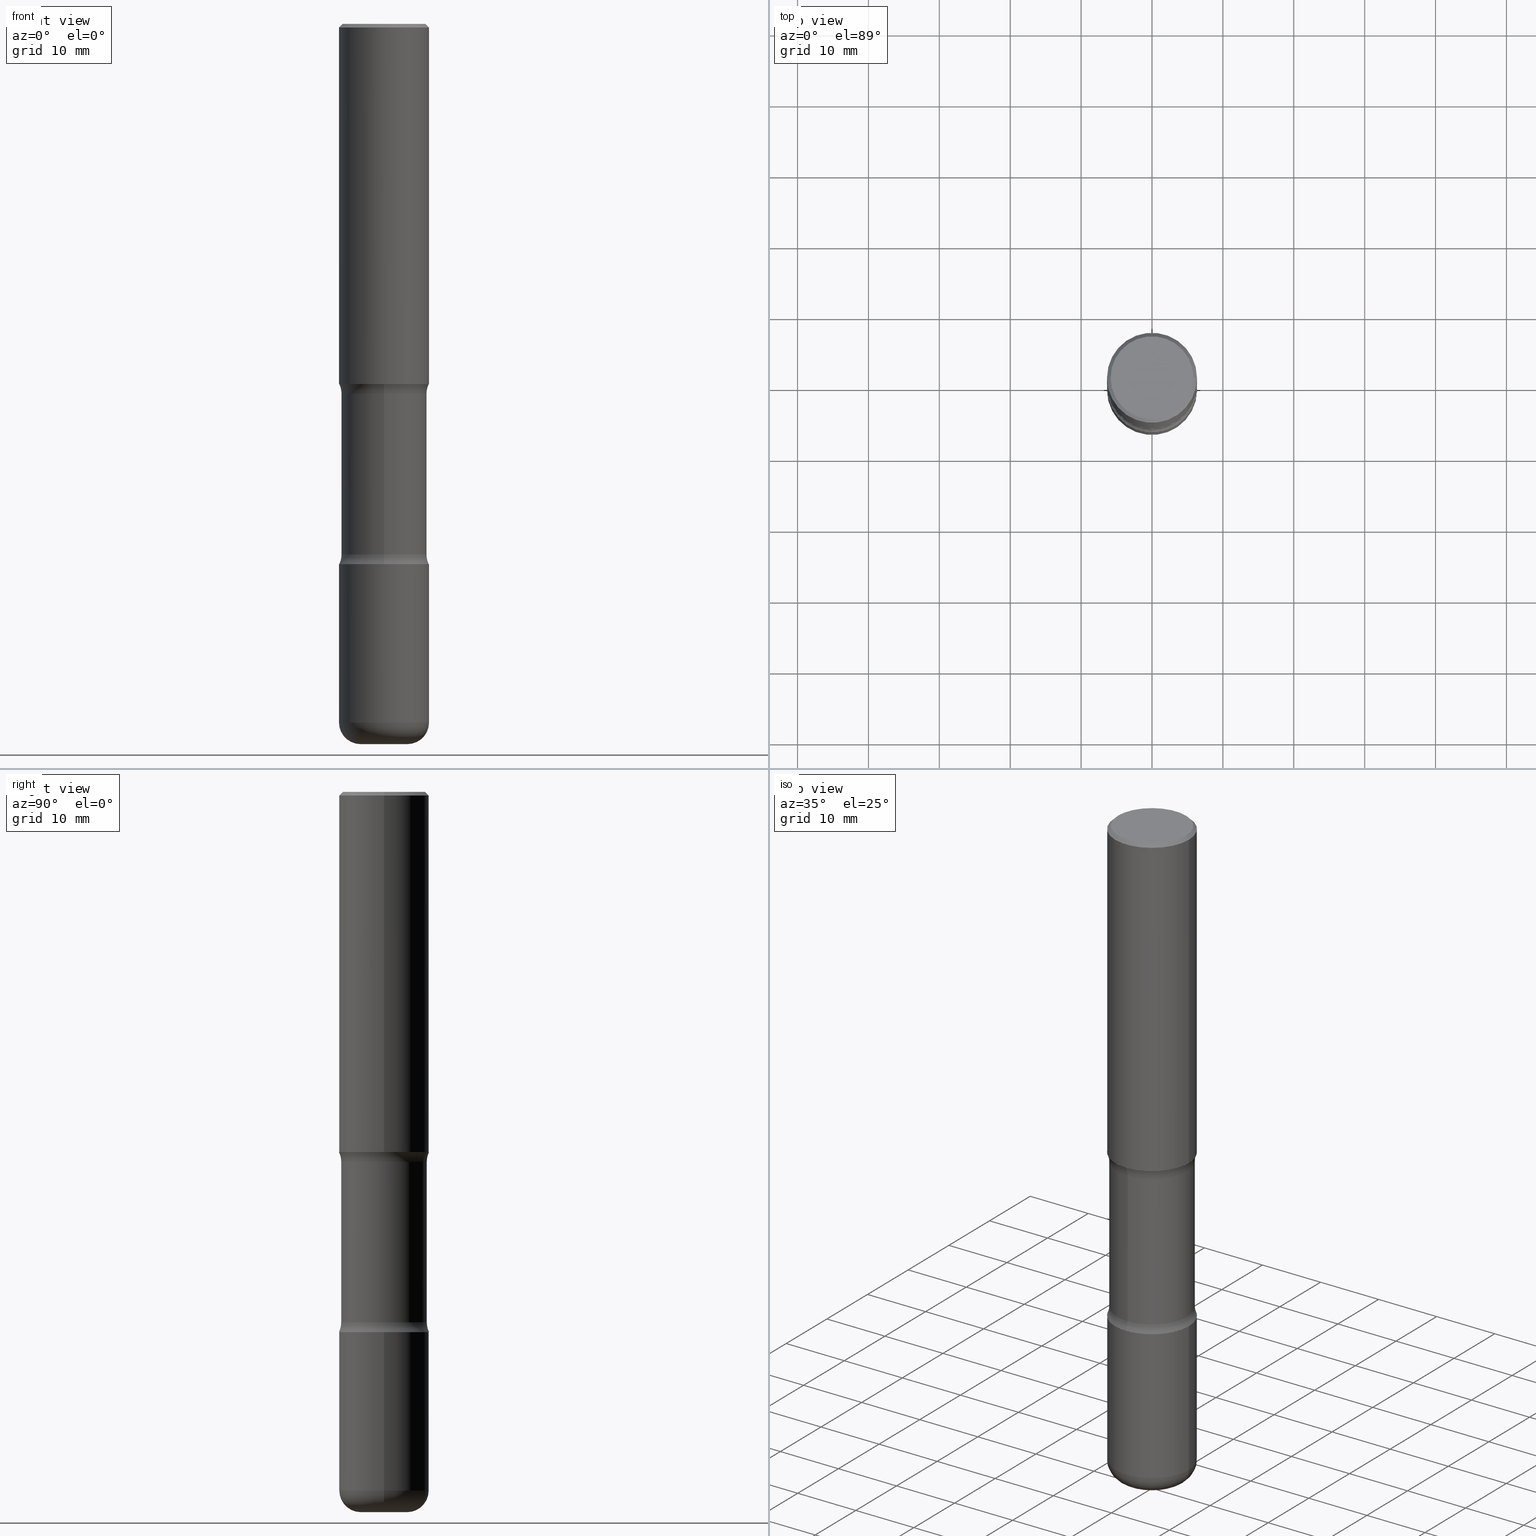
[diagram: canonical four-view strip — front | top / right | iso, engineering-drawing reading convention]
A machine part, canonical four-view strip (front | top / right | iso — engineering-drawing reading convention). The complete STEP part file that produces these views, byte-faithful:
ISO-10303-21;
HEADER;
FILE_DESCRIPTION (( 'STEP AP203' ),
    '1' );
FILE_NAME ('37892.STEP',
    '2024-03-02T01:09:26',
    ( '' ),
    ( '' ),
    'SwSTEP 2.0',
    'SolidWorks 2023',
    '' );
FILE_SCHEMA (( 'CONFIG_CONTROL_DESIGN' ));
ENDSEC;

DATA;
#1 = CLOSED_SHELL ( 'NONE', ( #502, #413, #62, #197, #475, #171, #137, #147 ) ) ;
#2 = DIRECTION ( 'NONE',  ( 1.000000000000000000, -6.982962677686267499E-15, 4.876176775795936353E-29 ) ) ;
#3 = DIRECTION ( 'NONE',  ( 0.000000000000000000, 0.000000000000000000, 1.000000000000000000 ) ) ;
#4 = EDGE_CURVE ( 'NONE', #52, #246, #182, .T. ) ;
#5 = DIRECTION ( 'NONE',  ( 1.000000000000000000, -6.982962677686267499E-15, 0.000000000000000000 ) ) ;
#6 = FACE_OUTER_BOUND ( 'NONE', #192, .T. ) ;
#7 = VERTEX_POINT ( 'NONE', #156 ) ;
#8 = AXIS2_PLACEMENT_3D ( 'NONE', #359, #243, #221 ) ;
#9 = DIRECTION ( 'NONE',  ( -2.438088387897960049E-29, 3.491481338843145188E-15, 1.000000000000000000 ) ) ;
#10 = PLANE ( 'NONE',  #163 ) ;
#11 = CARTESIAN_POINT ( 'NONE',  ( -0.1300000000000003375, -1.262324203822327621E-14, -3.880000000000000782 ) ) ;
#12 = DIRECTION ( 'NONE',  ( 2.530378452311521502E-29, -3.369885892833230986E-15, -1.000000000000000000 ) ) ;
#13 = CARTESIAN_POINT ( 'NONE',  ( 4.943898765775623630E-29, -7.288170524422749615E-15, -2.054486236794258680 ) ) ;
#14 = PERSON_AND_ORGANIZATION ( #513, #545 ) ;
#15 = EDGE_CURVE ( 'NONE', #246, #72, #141, .T. ) ;
#16 = DIRECTION ( 'NONE',  ( 1.000000000000000000, -6.982962677686265922E-15, 4.876176775795935793E-29 ) ) ;
#17 = AXIS2_PLACEMENT_3D ( 'NONE', #387, #346, #548 ) ;
#18 = CARTESIAN_POINT ( 'NONE',  ( 9.488418967998331206E-29, -1.354694759471140727E-14, -3.880000000000000782 ) ) ;
#19 = AXIS2_PLACEMENT_3D ( 'NONE', #122, #126, #296 ) ;
#20 = DIRECTION ( 'NONE',  ( -2.445468806185136597E-29, 3.491481338843145583E-15, 1.000000000000000000 ) ) ;
#21 = ORIENTED_EDGE ( 'NONE', *, *, #26, .T. ) ;
#22 = DIRECTION ( 'NONE',  ( 2.530378452311521502E-29, -3.369885892833230592E-15, -1.000000000000000000 ) ) ;
#23 = DIRECTION ( 'NONE',  ( 6.982962677686265922E-15, 1.000000000000000000, -3.369885892833230986E-15 ) ) ;
#24 = APPLICATION_PROTOCOL_DEFINITION ( 'international standard', 'config_control_design', 1994, #209 ) ;
#25 = ORIENTED_EDGE ( 'NONE', *, *, #322, .F. ) ;
#26 = EDGE_CURVE ( 'NONE', #300, #426, #419, .T. ) ;
#27 = CARTESIAN_POINT ( 'NONE',  ( -0.2500000000000003331, 1.776356839400252831E-15, -1.229733772563727987E-29 ) ) ;
#28 = ORIENTED_EDGE ( 'NONE', *, *, #201, .F. ) ;
#29 = CARTESIAN_POINT ( 'NONE',  ( 0.2500000000000002776, -1.222018468595100619E-14, -3.000000000000000444 ) ) ;
#30 = AXIS2_PLACEMENT_3D ( 'NONE', #172, #264, #181 ) ;
#31 = CIRCLE ( 'NONE', #168, 0.1300000000000003375 ) ;
#32 = VERTEX_POINT ( 'NONE', #112 ) ;
#33 =( NAMED_UNIT ( * ) SI_UNIT ( $, .STERADIAN. ) SOLID_ANGLE_UNIT ( ) );
#34 = ORIENTED_EDGE ( 'NONE', *, *, #218, .T. ) ;
#35 = FACE_OUTER_BOUND ( 'NONE', #213, .T. ) ;
#36 = CARTESIAN_POINT ( 'NONE',  ( 1.745740669421641422E-15, 0.2499999999999897582, -3.000000000000000888 ) ) ;
#37 = DIRECTION ( 'NONE',  ( 1.000000000000000000, -6.982962677686269077E-15, 0.000000000000000000 ) ) ;
#38 = AXIS2_PLACEMENT_3D ( 'NONE', #167, #78, #357 ) ;
#39 = AXIS2_PLACEMENT_3D ( 'NONE', #363, #532, #442 ) ;
#40 = ORIENTED_EDGE ( 'NONE', *, *, #170, .T. ) ;
#41 = LINE ( 'NONE', #267, #84 ) ;
#42 = DIRECTION ( 'NONE',  ( 1.000000000000000000, -6.982962677686267499E-15, 0.000000000000000000 ) ) ;
#43 = SECURITY_CLASSIFICATION_LEVEL ( 'unclassified' ) ;
#44 = FACE_OUTER_BOUND ( 'NONE', #252, .T. ) ;
#45 = CALENDAR_DATE ( 2024, 1, 3 ) ;
#46 = CARTESIAN_POINT ( 'NONE',  ( 4.890937612370273194E-29, -6.982962677686291165E-15, -2.000000000000000000 ) ) ;
#47 = AXIS2_PLACEMENT_3D ( 'NONE', #270, #338, #500 ) ;
#48 = AXIS2_PLACEMENT_3D ( 'NONE', #260, #262, #272 ) ;
#49 = CARTESIAN_POINT ( 'NONE',  ( 0.000000000000000000, 0.000000000000000000, 0.000000000000000000 ) ) ;
#50 = EDGE_CURVE ( 'NONE', #7, #288, #194, .T. ) ;
#51 = ORIENTED_EDGE ( 'NONE', *, *, #310, .T. ) ;
#52 = VERTEX_POINT ( 'NONE', #443 ) ;
#53 = CARTESIAN_POINT ( 'NONE',  ( 7.336406418555409790E-29, -1.047444401652943635E-14, -3.000000000000000444 ) ) ;
#54 = DIRECTION ( 'NONE',  ( 1.000000000000000000, -6.860497997771530774E-15, 4.842287994361612002E-29 ) ) ;
#55 = EDGE_CURVE ( 'NONE', #222, #281, #554, .T. ) ;
#56 = ORIENTED_EDGE ( 'NONE', *, *, #218, .F. ) ;
#57 = CIRCLE ( 'NONE', #109, 0.2499999999999999167 ) ;
#58 = CIRCLE ( 'NONE', #345, 0.2375000000000001277 ) ;
#59 = DATE_TIME_ROLE ( 'creation_date' ) ;
#60 = FACE_OUTER_BOUND ( 'NONE', #158, .T. ) ;
#61 = FACE_OUTER_BOUND ( 'NONE', #157, .T. ) ;
#62 = ADVANCED_FACE ( 'NONE', ( #61 ), #427, .F. ) ;
#63 = VERTEX_POINT ( 'NONE', #64 ) ;
#64 = CARTESIAN_POINT ( 'NONE',  ( -0.1300000000000003375, -1.240640527709780404E-14, -4.000000000000000888 ) ) ;
#65 = ORIENTED_EDGE ( 'NONE', *, *, #322, .T. ) ;
#66 = DIMENSIONAL_EXPONENTS ( 1.000000000000000000, 0.000000000000000000, 0.000000000000000000, 0.000000000000000000, 0.000000000000000000, 0.000000000000000000, 0.000000000000000000 ) ;
#67 = DIRECTION ( 'NONE',  ( 2.438088387897960049E-29, -3.491481338843145188E-15, -1.000000000000000000 ) ) ;
#68 = CIRCLE ( 'NONE', #544, 0.2500000000000001665 ) ;
#69 = ORIENTED_EDGE ( 'NONE', *, *, #50, .T. ) ;
#70 = EDGE_CURVE ( 'NONE', #107, #204, #355, .T. ) ;
#71 = CARTESIAN_POINT ( 'NONE',  ( 4.806027966243888288E-29, -7.104558123696206156E-15, -2.000000000000000000 ) ) ;
#72 = VERTEX_POINT ( 'NONE', #29 ) ;
#73 = CC_DESIGN_PERSON_AND_ORGANIZATION_ASSIGNMENT ( #465, #82, ( #185 ) ) ;
#74 = CALENDAR_DATE ( 2024, 1, 3 ) ;
#75 = EDGE_LOOP ( 'NONE', ( #417, #123, #227, #553 ) ) ;
#76 = TOROIDAL_SURFACE ( 'NONE', #17, 0.1300000000000003375, 0.1199999999999999539 ) ;
#77 = CIRCLE ( 'NONE', #366, 0.1199999999999999262 ) ;
#78 = DIRECTION ( 'NONE',  ( 2.530378452311521502E-29, -3.369885892833230986E-15, -1.000000000000000000 ) ) ;
#79 = DIRECTION ( 'NONE',  ( -2.445468806185136597E-29, 3.491481338843145583E-15, 1.000000000000000000 ) ) ;
#80 = EDGE_CURVE ( 'NONE', #295, #490, #41, .T. ) ;
#81 = DIRECTION ( 'NONE',  ( 6.982962677686265133E-15, 1.000000000000000000, -3.278217592397110735E-15 ) ) ;
#82 = PERSON_AND_ORGANIZATION_ROLE ( 'classification_officer' ) ;
#83 = AXIS2_PLACEMENT_3D ( 'NONE', #365, #452, #459 ) ;
#84 = VECTOR ( 'NONE', #481, 39.37007874015748143 ) ;
#85 = VECTOR ( 'NONE', #93, 39.37007874015748143 ) ;
#86 = EDGE_CURVE ( 'NONE', #353, #451, #381, .T. ) ;
#87 = DIRECTION ( 'NONE',  ( -2.445468806185136597E-29, 3.491481338843145583E-15, 1.000000000000000000 ) ) ;
#88 = DATE_AND_TIME ( #166, #154 ) ;
#89 = DIRECTION ( 'NONE',  ( -2.445468806185136877E-29, 3.491481338843145188E-15, 1.000000000000000000 ) ) ;
#90 = CARTESIAN_POINT ( 'NONE',  ( 7.203162026108633562E-29, -1.028420633753849345E-14, -2.945513763205741320 ) ) ;
#91 = PRODUCT_DEFINITION ( 'UNKNOWN', '', #517, #261 ) ;
#92 = DIRECTION ( 'NONE',  ( 6.982962677686265922E-15, 1.000000000000000000, -3.369885892833230986E-15 ) ) ;
#93 = DIRECTION ( 'NONE',  ( 2.530378452311521502E-29, -3.369885892833230592E-15, -1.000000000000000000 ) ) ;
#94 = AXIS2_PLACEMENT_3D ( 'NONE', #304, #509, #37 ) ;
#95 = AXIS2_PLACEMENT_3D ( 'NONE', #303, #560, #210 ) ;
#96 = DIRECTION ( 'NONE',  ( -2.445468806185136877E-29, 3.491481338843145188E-15, 1.000000000000000000 ) ) ;
#97 = AXIS2_PLACEMENT_3D ( 'NONE', #71, #287, #376 ) ;
#98 = LOCAL_TIME ( 20, 9, 26.00000000000000000, #505 ) ;
#99 = ADVANCED_FACE ( 'NONE', ( #522 ), #134, .T. ) ;
#100 = CC_DESIGN_SECURITY_CLASSIFICATION ( #185, ( #517 ) ) ;
#101 = ORIENTED_EDGE ( 'NONE', *, *, #275, .F. ) ;
#102 = CARTESIAN_POINT ( 'NONE',  ( 7.336406418555409790E-29, -1.047444401652943635E-14, -3.000000000000000444 ) ) ;
#103 = DIRECTION ( 'NONE',  ( 2.530378452311521502E-29, -3.369885892833230986E-15, -1.000000000000000000 ) ) ;
#104 = EDGE_LOOP ( 'NONE', ( #498, #436 ) ) ;
#105 = PRODUCT ( '37892', '37892', '', ( #434 ) ) ;
#106 = EDGE_CURVE ( 'NONE', #451, #490, #326, .T. ) ;
#107 = VERTEX_POINT ( 'NONE', #36 ) ;
#108 = DATE_AND_TIME ( #314, #431 ) ;
#109 = AXIS2_PLACEMENT_3D ( 'NONE', #169, #390, #255 ) ;
#110 = CIRCLE ( 'NONE', #318, 0.2500000000000001665 ) ;
#111 = ORIENTED_EDGE ( 'NONE', *, *, #55, .F. ) ;
#112 = CARTESIAN_POINT ( 'NONE',  ( -0.2499999999999999167, 1.675911042644703182E-15, -0.02000000000000006981 ) ) ;
#113 = EDGE_LOOP ( 'NONE', ( #56, #373 ) ) ;
#114 = DIRECTION ( 'NONE',  ( -1.000000000000000000, 6.982962677686265922E-15, -4.876176775795935793E-29 ) ) ;
#115 = FACE_OUTER_BOUND ( 'NONE', #458, .T. ) ;
#116 = DIRECTION ( 'NONE',  ( 2.530378452311521502E-29, -3.369885892833230986E-15, -1.000000000000000000 ) ) ;
#117 = ADVANCED_FACE ( 'NONE', ( #344 ), #506, .T. ) ;
#118 = CARTESIAN_POINT ( 'NONE',  ( -1.715124499442811104E-15, -0.2500000000000107692, -2.999999999999999556 ) ) ;
#119 = AXIS2_PLACEMENT_3D ( 'NONE', #540, #79, #424 ) ;
#120 = APPROVAL_PERSON_ORGANIZATION ( #226, #494, #150 ) ;
#121 = FACE_OUTER_BOUND ( 'NONE', #75, .T. ) ;
#122 = CARTESIAN_POINT ( 'NONE',  ( 7.336406418555409790E-29, -1.047444401652943635E-14, -3.000000000000000444 ) ) ;
#123 = ORIENTED_EDGE ( 'NONE', *, *, #354, .T. ) ;
#124 = AXIS2_PLACEMENT_3D ( 'NONE', #180, #285, #279 ) ;
#125 = PERSON_AND_ORGANIZATION_ROLE ( 'creator' ) ;
#126 = DIRECTION ( 'NONE',  ( 2.530378452311521502E-29, -3.369885892833230986E-15, -1.000000000000000000 ) ) ;
#127 = CARTESIAN_POINT ( 'NONE',  ( 0.000000000000000000, 0.000000000000000000, 0.000000000000000000 ) ) ;
#128 = CARTESIAN_POINT ( 'NONE',  ( 1.745740669421617165E-15, 0.2499999999999933109, -2.000000000000000888 ) ) ;
#129 = DIRECTION ( 'NONE',  ( -0.7071067811865467956, 2.468850131082249172E-15, -0.7071067811865482389 ) ) ;
#130 = CARTESIAN_POINT ( 'NONE',  ( 1.658453635950538436E-15, 0.2374999999999928557, -2.054486236794259568 ) ) ;
#131 = SHAPE_DEFINITION_REPRESENTATION ( #276, #200 ) ;
#132 = DIRECTION ( 'NONE',  ( -6.982962677686265922E-15, -1.000000000000000000, 3.369885892833230592E-15 ) ) ;
#133 = CC_DESIGN_DATE_AND_TIME_ASSIGNMENT ( #193, #342, ( #185 ) ) ;
#134 = CONICAL_SURFACE ( 'NONE', #477, 0.2499999999999999167, 0.7853981633974472798 ) ;
#135 = UNCERTAINTY_MEASURE_WITH_UNIT (LENGTH_MEASURE( 1.000000000000000082E-05 ), #466, 'distance_accuracy_value', 'NONE');
#136 = CARTESIAN_POINT ( 'NONE',  ( 0.000000000000000000, 0.000000000000000000, 0.000000000000000000 ) ) ;
#137 = ADVANCED_FACE ( 'NONE', ( #558 ), #174, .F. ) ;
#138 = CARTESIAN_POINT ( 'NONE',  ( 4.890937612370273194E-29, -6.982962677686291165E-15, -2.000000000000000000 ) ) ;
#139 = PLANE ( 'NONE',  #450 ) ;
#140 = ORIENTED_EDGE ( 'NONE', *, *, #80, .T. ) ;
#141 = CIRCLE ( 'NONE', #317, 0.2500000000000002776 ) ;
#142 = CIRCLE ( 'NONE', #19, 0.2500000000000002776 ) ;
#143 = PLANE ( 'NONE',  #124 ) ;
#144 = DIRECTION ( 'NONE',  ( -2.445468806185136877E-29, 3.491481338843145188E-15, 1.000000000000000000 ) ) ;
#145 = ORIENTED_EDGE ( 'NONE', *, *, #263, .T. ) ;
#146 = APPROVAL_DATE_TIME ( #291, #494 ) ;
#147 = ADVANCED_FACE ( 'NONE', ( #472 ), #433, .T. ) ;
#148 = EDGE_LOOP ( 'NONE', ( #378, #384, #319, #495 ) ) ;
#149 = CARTESIAN_POINT ( 'NONE',  ( 9.781875224740547508E-29, -1.396592535537258391E-14, -4.000000000000000888 ) ) ;
#150 = APPROVAL_ROLE ( '' ) ;
#151 = ORIENTED_EDGE ( 'NONE', *, *, #70, .T. ) ;
#152 = CIRCLE ( 'NONE', #94, 0.1300000000000003375 ) ;
#153 = DIRECTION ( 'NONE',  ( -2.445468806185136597E-29, 3.491481338843145583E-15, 1.000000000000000000 ) ) ;
#154 = LOCAL_TIME ( 20, 9, 26.00000000000000000, #470 ) ;
#155 = APPROVAL_PERSON_ORGANIZATION ( #14, #231, #389 ) ;
#156 = CARTESIAN_POINT ( 'NONE',  ( -1.715124499442836348E-15, -0.2500000000000074385, -1.999999999999999112 ) ) ;
#157 = EDGE_LOOP ( 'NONE', ( #412, #191, #69, #28 ) ) ;
#158 = EDGE_LOOP ( 'NONE', ( #425, #240 ) ) ;
#159 = ADVANCED_FACE ( 'NONE', ( #115 ), #496, .T. ) ;
#160 = DIRECTION ( 'NONE',  ( -2.445468806185136597E-29, 3.491481338843145583E-15, 1.000000000000000000 ) ) ;
#161 = EDGE_CURVE ( 'NONE', #286, #204, #404, .T. ) ;
#162 = AXIS2_PLACEMENT_3D ( 'NONE', #526, #173, #385 ) ;
#163 = AXIS2_PLACEMENT_3D ( 'NONE', #484, #330, #460 ) ;
#164 = EDGE_LOOP ( 'NONE', ( #329, #480, #535, #101 ) ) ;
#165 = ADVANCED_FACE ( 'NONE', ( #321 ), #76, .T. ) ;
#166 = CALENDAR_DATE ( 2024, 1, 3 ) ;
#167 = CARTESIAN_POINT ( 'NONE',  ( 7.198535619023675570E-29, -1.029083161580289368E-14, -2.945513763205741320 ) ) ;
#168 = AXIS2_PLACEMENT_3D ( 'NONE', #149, #153, #454 ) ;
#169 = CARTESIAN_POINT ( 'NONE',  ( 4.890937612370289799E-31, -6.982962677686315028E-17, -0.02000000000000006981 ) ) ;
#170 = EDGE_CURVE ( 'NONE', #426, #52, #247, .T. ) ;
#171 = ADVANCED_FACE ( 'NONE', ( #35 ), #511, .F. ) ;
#172 = CARTESIAN_POINT ( 'NONE',  ( 7.198535619023675570E-29, -1.029083161580289368E-14, -2.945513763205741320 ) ) ;
#173 = DIRECTION ( 'NONE',  ( 2.530378452311521502E-29, -3.369885892833230986E-15, -1.000000000000000000 ) ) ;
#174 = TOROIDAL_SURFACE ( 'NONE', #256, 0.3625000000000000999, 0.1250000000000000278 ) ;
#175 = LOCAL_TIME ( 20, 9, 26.00000000000000000, #332 ) ;
#176 = FACE_OUTER_BOUND ( 'NONE', #380, .T. ) ;
#177 = LINE ( 'NONE', #324, #524 ) ;
#178 = ADVANCED_FACE ( 'NONE', ( #311 ), #519, .T. ) ;
#179 = MANIFOLD_SOLID_BREP ( 'Body-Move/Copy2[4]', #1 ) ;
#180 = CARTESIAN_POINT ( 'NONE',  ( 1.606081415867840476E-15, 0.2299999999999998990, -8.030407079339231961E-16 ) ) ;
#181 = DIRECTION ( 'NONE',  ( 6.982962677686265133E-15, 1.000000000000000000, -2.300503573612010239E-15 ) ) ;
#182 = LINE ( 'NONE', #27, #230 ) ;
#183 = EDGE_LOOP ( 'NONE', ( #312, #348 ) ) ;
#184 = AXIS2_PLACEMENT_3D ( 'NONE', #136, #253, #2 ) ;
#185 = SECURITY_CLASSIFICATION ( '', '', #43 ) ;
#186 = CARTESIAN_POINT ( 'NONE',  ( 0.000000000000000000, 0.000000000000000000, 0.000000000000000000 ) ) ;
#187 = ORIENTED_EDGE ( 'NONE', *, *, #422, .F. ) ;
#188 = CYLINDRICAL_SURFACE ( 'NONE', #411, 0.2375000000000000999 ) ;
#189 = DIRECTION ( 'NONE',  ( -1.000000000000000000, 6.982962677686265922E-15, -4.883557194083112340E-29 ) ) ;
#190 = MANIFOLD_SOLID_BREP ( 'Body-Move/Copy2[2]', #533 ) ;
#191 = ORIENTED_EDGE ( 'NONE', *, *, #527, .T. ) ;
#192 = EDGE_LOOP ( 'NONE', ( #474, #372, #244, #388 ) ) ;
#193 = DATE_AND_TIME ( #485, #356 ) ;
#194 = CIRCLE ( 'NONE', #97, 0.2500000000000003886 ) ;
#195 = VECTOR ( 'NONE', #129, 39.37007874015748143 ) ;
#196 = LENGTH_MEASURE_WITH_UNIT ( LENGTH_MEASURE( 0.02539999999999999897 ), #552 );
#197 = ADVANCED_FACE ( 'NONE', ( #6 ), #343, .F. ) ;
#198 = EDGE_LOOP ( 'NONE', ( #229, #360, #549, #468 ) ) ;
#199 = EDGE_LOOP ( 'NONE', ( #111, #25, #151, #445 ) ) ;
#200 = ADVANCED_BREP_SHAPE_REPRESENTATION ( '37892', ( #383, #190, #179, #525 ), #302 ) ;
#201 = EDGE_CURVE ( 'NONE', #286, #288, #398, .T. ) ;
#202 = AXIS2_PLACEMENT_3D ( 'NONE', #245, #374, #81 ) ;
#203 = AXIS2_PLACEMENT_3D ( 'NONE', #402, #54, #217 ) ;
#204 = VERTEX_POINT ( 'NONE', #529 ) ;
#205 = CC_DESIGN_PERSON_AND_ORGANIZATION_ASSIGNMENT ( #351, #493, ( #105 ) ) ;
#206 = DIRECTION ( 'NONE',  ( -1.000000000000000000, 6.982962677686265922E-15, -4.876176775795935793E-29 ) ) ;
#207 = APPROVAL_DATE_TIME ( #88, #231 ) ;
#208 = CARTESIAN_POINT ( 'NONE',  ( 0.2500000000000001665, -8.728703347107858632E-15, -2.000000000000000000 ) ) ;
#209 = APPLICATION_CONTEXT ( 'configuration controlled 3d designs of mechanical parts and assemblies' ) ;
#210 = DIRECTION ( 'NONE',  ( 1.000000000000000000, -6.982962677686266711E-15, 4.876176775795935793E-29 ) ) ;
#211 = CLOSED_SHELL ( 'NONE', ( #375, #165, #117, #159, #333, #461 ) ) ;
#212 = CIRCLE ( 'NONE', #421, 0.2500000000000002776 ) ;
#213 = EDGE_LOOP ( 'NONE', ( #65, #473 ) ) ;
#214 = EDGE_CURVE ( 'NONE', #300, #63, #152, .T. ) ;
#215 = CC_DESIGN_PERSON_AND_ORGANIZATION_ASSIGNMENT ( #250, #125, ( #517 ) ) ;
#216 = ORIENTED_EDGE ( 'NONE', *, *, #106, .T. ) ;
#217 = DIRECTION ( 'NONE',  ( 6.860497997771529985E-15, 1.000000000000000000, 0.000000000000000000 ) ) ;
#218 = EDGE_CURVE ( 'NONE', #295, #418, #68, .T. ) ;
#219 = AXIS2_PLACEMENT_3D ( 'NONE', #49, #435, #224 ) ;
#220 = CONICAL_SURFACE ( 'NONE', #8, 0.2499999999999999167, 0.7853981633974472798 ) ;
#221 = DIRECTION ( 'NONE',  ( -1.000000000000000000, 6.982962677686267499E-15, 0.000000000000000000 ) ) ;
#222 = VERTEX_POINT ( 'NONE', #118 ) ;
#223 = DIRECTION ( 'NONE',  ( 6.982962677686265922E-15, 1.000000000000000000, -4.370956789862816416E-15 ) ) ;
#224 = DIRECTION ( 'NONE',  ( 1.000000000000000000, -6.982962677686267499E-15, 4.876176775795935793E-29 ) ) ;
#225 = PERSON_AND_ORGANIZATION ( #513, #545 ) ;
#226 = PERSON_AND_ORGANIZATION ( #513, #545 ) ;
#227 = ORIENTED_EDGE ( 'NONE', *, *, #290, .F. ) ;
#228 = FACE_OUTER_BOUND ( 'NONE', #113, .T. ) ;
#229 = ORIENTED_EDGE ( 'NONE', *, *, #508, .F. ) ;
#230 = VECTOR ( 'NONE', #144, 39.37007874015748143 ) ;
#231 = APPROVAL ( #441, 'UNSPECIFIED' ) ;
#232 = PERSON_AND_ORGANIZATION_ROLE ( 'creator' ) ;
#233 = CARTESIAN_POINT ( 'NONE',  ( -0.2500000000000001665, -1.750039312831323809E-15, -2.000000000000000000 ) ) ;
#234 = ORIENTED_EDGE ( 'NONE', *, *, #4, .F. ) ;
#235 = CARTESIAN_POINT ( 'NONE',  ( 7.336406418555409790E-29, -1.047444401652943635E-14, -3.000000000000000444 ) ) ;
#236 = ORIENTED_EDGE ( 'NONE', *, *, #80, .F. ) ;
#237 = EDGE_CURVE ( 'NONE', #288, #7, #449, .T. ) ;
#238 = CARTESIAN_POINT ( 'NONE',  ( 4.976491023364875751E-29, -7.241496556518841686E-15, -2.054486236794258680 ) ) ;
#239 = DIRECTION ( 'NONE',  ( 2.445468806185136597E-29, -3.491481338843145583E-15, -1.000000000000000000 ) ) ;
#240 = ORIENTED_EDGE ( 'NONE', *, *, #428, .T. ) ;
#241 = AXIS2_PLACEMENT_3D ( 'NONE', #18, #328, #486 ) ;
#242 = VECTOR ( 'NONE', #89, 39.37007874015748143 ) ;
#243 = DIRECTION ( 'NONE',  ( 2.445468806185136597E-29, -3.491481338843145583E-15, -1.000000000000000000 ) ) ;
#244 = ORIENTED_EDGE ( 'NONE', *, *, #201, .T. ) ;
#245 = CARTESIAN_POINT ( 'NONE',  ( 4.806027966243888288E-29, -7.104558123696206156E-15, -2.000000000000000000 ) ) ;
#246 = VERTEX_POINT ( 'NONE', #541 ) ;
#247 = CIRCLE ( 'NONE', #119, 0.2500000000000003886 ) ;
#248 = CARTESIAN_POINT ( 'NONE',  ( 4.890937612370289799E-31, -6.982962677686315028E-17, -0.02000000000000006981 ) ) ;
#249 = CC_DESIGN_APPROVAL ( #494, ( #91 ) ) ;
#250 = PERSON_AND_ORGANIZATION ( #513, #545 ) ;
#251 = APPROVAL_DATE_TIME ( #476, #298 ) ;
#252 = EDGE_LOOP ( 'NONE', ( #234, #280, #145, #447 ) ) ;
#253 = DIRECTION ( 'NONE',  ( -2.445468806185136597E-29, 3.491481338843145583E-15, 1.000000000000000000 ) ) ;
#254 = EDGE_LOOP ( 'NONE', ( #547, #271, #140, #325 ) ) ;
#255 = DIRECTION ( 'NONE',  ( 1.000000000000000000, -6.982962677686267499E-15, 0.000000000000000000 ) ) ;
#256 = AXIS2_PLACEMENT_3D ( 'NONE', #90, #12, #307 ) ;
#257 = APPROVAL_PERSON_ORGANIZATION ( #340, #298, #289 ) ;
#258 = PLANE ( 'NONE',  #469 ) ;
#259 = EDGE_LOOP ( 'NONE', ( #277, #339, #488, #397 ) ) ;
#260 = CARTESIAN_POINT ( 'NONE',  ( 4.943898765775623630E-29, -7.288170524422749615E-15, -2.054486236794258680 ) ) ;
#261 = DESIGN_CONTEXT ( 'detailed design', #209, 'design' ) ;
#262 = DIRECTION ( 'NONE',  ( 2.530378452311521502E-29, -3.369885892833230986E-15, -1.000000000000000000 ) ) ;
#263 = EDGE_CURVE ( 'NONE', #426, #72, #177, .T. ) ;
#264 = DIRECTION ( 'NONE',  ( 2.530378452311521502E-29, -3.369885892833230986E-15, -1.000000000000000000 ) ) ;
#265 = DIRECTION ( 'NONE',  ( -2.530378452311521502E-29, 3.369885892833230592E-15, 1.000000000000000000 ) ) ;
#266 = AXIS2_PLACEMENT_3D ( 'NONE', #429, #510, #206 ) ;
#267 = CARTESIAN_POINT ( 'NONE',  ( 0.2500000000000000555, -1.745740669421567269E-15, 1.219044193948984228E-29 ) ) ;
#268 = CC_DESIGN_APPROVAL ( #231, ( #517 ) ) ;
#269 = DIRECTION ( 'NONE',  ( -2.445468806185136597E-29, 3.491481338843145583E-15, 1.000000000000000000 ) ) ;
#270 = CARTESIAN_POINT ( 'NONE',  ( 0.1300000000000003375, -1.445473274281062700E-14, -3.880000000000000782 ) ) ;
#271 = ORIENTED_EDGE ( 'NONE', *, *, #512, .T. ) ;
#272 = DIRECTION ( 'NONE',  ( 6.982962677686265133E-15, 1.000000000000000000, -3.450755360418014766E-15 ) ) ;
#273 = DIRECTION ( 'NONE',  ( 2.530378452311521502E-29, -3.369885892833230986E-15, -1.000000000000000000 ) ) ;
#274 = DIRECTION ( 'NONE',  ( 6.860497997771532351E-15, 1.000000000000000000, 0.000000000000000000 ) ) ;
#275 = EDGE_CURVE ( 'NONE', #281, #204, #282, .T. ) ;
#276 = PRODUCT_DEFINITION_SHAPE ( 'NONE', 'NONE',  #91 ) ;
#277 = ORIENTED_EDGE ( 'NONE', *, *, #214, .T. ) ;
#278 = DIRECTION ( 'NONE',  ( 0.7071067811865467956, -7.319954787623254468E-15, -0.7071067811865482389 ) ) ;
#279 = DIRECTION ( 'NONE',  ( -1.000000000000000000, 6.982962677686265922E-15, -4.876176775795935793E-29 ) ) ;
#280 = ORIENTED_EDGE ( 'NONE', *, *, #382, .T. ) ;
#281 = VERTEX_POINT ( 'NONE', #364 ) ;
#282 = CIRCLE ( 'NONE', #30, 0.2375000000000000722 ) ;
#283 = CARTESIAN_POINT ( 'NONE',  ( 0.2499999999999999167, -1.784954126219745400E-15, -0.02000000000000006981 ) ) ;
#284 = AXIS2_PLACEMENT_3D ( 'NONE', #379, #160, #543 ) ;
#285 = DIRECTION ( 'NONE',  ( 2.438088387897960049E-29, -3.491481338843145188E-15, -1.000000000000000000 ) ) ;
#286 = VERTEX_POINT ( 'NONE', #130 ) ;
#287 = DIRECTION ( 'NONE',  ( 2.530378452311521502E-29, -3.369885892833230986E-15, -1.000000000000000000 ) ) ;
#288 = VERTEX_POINT ( 'NONE', #128 ) ;
#289 = APPROVAL_ROLE ( '' ) ;
#290 = EDGE_CURVE ( 'NONE', #204, #281, #301, .T. ) ;
#291 = DATE_AND_TIME ( #74, #175 ) ;
#292 = AXIS2_PLACEMENT_3D ( 'NONE', #448, #189, #331 ) ;
#293 = CYLINDRICAL_SURFACE ( 'NONE', #336, 0.2500000000000000555 ) ;
#294 = CIRCLE ( 'NONE', #48, 0.2375000000000001277 ) ;
#295 = VERTEX_POINT ( 'NONE', #208 ) ;
#296 = DIRECTION ( 'NONE',  ( 6.982962677686265922E-15, 1.000000000000000000, -4.370956789862816416E-15 ) ) ;
#297 = ORIENTED_EDGE ( 'NONE', *, *, #4, .T. ) ;
#298 = APPROVAL ( #550, 'UNSPECIFIED' ) ;
#299 = APPLICATION_PROTOCOL_DEFINITION ( 'international standard', 'config_control_design', 1994, #341 ) ;
#300 = VERTEX_POINT ( 'NONE', #349 ) ;
#301 = CIRCLE ( 'NONE', #38, 0.2375000000000000722 ) ;
#302 =( GEOMETRIC_REPRESENTATION_CONTEXT ( 3 ) GLOBAL_UNCERTAINTY_ASSIGNED_CONTEXT ( ( #135 ) ) GLOBAL_UNIT_ASSIGNED_CONTEXT ( ( #466, #377, #33 ) ) REPRESENTATION_CONTEXT ( 'NONE', 'WORKASPACE' ) );
#303 = CARTESIAN_POINT ( 'NONE',  ( 0.000000000000000000, 0.000000000000000000, 0.000000000000000000 ) ) ;
#304 = CARTESIAN_POINT ( 'NONE',  ( 9.781875224740547508E-29, -1.396592535537258391E-14, -4.000000000000000888 ) ) ;
#305 = EDGE_CURVE ( 'NONE', #32, #490, #57, .T. ) ;
#306 = CARTESIAN_POINT ( 'NONE',  ( -0.2299999999999998990, 1.640996229256271928E-15, -1.135408596578605420E-29 ) ) ;
#307 = DIRECTION ( 'NONE',  ( 6.982962677686265922E-15, 1.000000000000000000, -3.369885892833230986E-15 ) ) ;
#308 = CARTESIAN_POINT ( 'NONE',  ( 9.488418967998331206E-29, -1.354694759471140727E-14, -3.880000000000000782 ) ) ;
#309 = VECTOR ( 'NONE', #22, 39.37007874015748143 ) ;
#310 = EDGE_CURVE ( 'NONE', #490, #32, #400, .T. ) ;
#311 = FACE_OUTER_BOUND ( 'NONE', #254, .T. ) ;
#312 = ORIENTED_EDGE ( 'NONE', *, *, #422, .T. ) ;
#313 = CARTESIAN_POINT ( 'NONE',  ( -0.2499999999999999167, 1.675911042644703182E-15, -0.02000000000000006981 ) ) ;
#314 = CALENDAR_DATE ( 2024, 1, 3 ) ;
#315 = CARTESIAN_POINT ( 'NONE',  ( 4.890937612370273194E-29, -6.982962677686291165E-15, -2.000000000000000000 ) ) ;
#316 = DIRECTION ( 'NONE',  ( 1.000000000000000000, -6.982962677686270655E-15, 0.000000000000000000 ) ) ;
#317 = AXIS2_PLACEMENT_3D ( 'NONE', #323, #20, #316 ) ;
#318 = AXIS2_PLACEMENT_3D ( 'NONE', #138, #269, #437 ) ;
#319 = ORIENTED_EDGE ( 'NONE', *, *, #368, .T. ) ;
#320 = EDGE_CURVE ( 'NONE', #418, #32, #352, .T. ) ;
#321 = FACE_OUTER_BOUND ( 'NONE', #259, .T. ) ;
#322 = EDGE_CURVE ( 'NONE', #107, #222, #142, .T. ) ;
#323 = CARTESIAN_POINT ( 'NONE',  ( 7.336406418555409790E-29, -1.047444401652943635E-14, -3.000000000000000444 ) ) ;
#324 = CARTESIAN_POINT ( 'NONE',  ( 0.2500000000000003331, -1.745740669421569044E-15, 1.219044193948985630E-29 ) ) ;
#325 = ORIENTED_EDGE ( 'NONE', *, *, #305, .F. ) ;
#326 = LINE ( 'NONE', #491, #462 ) ;
#327 = DIRECTION ( 'NONE',  ( -2.445468806185136597E-29, 3.491481338843145583E-15, 1.000000000000000000 ) ) ;
#328 = DIRECTION ( 'NONE',  ( -2.445468806185136597E-29, 3.491481338843145583E-15, 1.000000000000000000 ) ) ;
#329 = ORIENTED_EDGE ( 'NONE', *, *, #354, .F. ) ;
#330 = DIRECTION ( 'NONE',  ( 2.530378452311521502E-29, -3.369885892833230592E-15, -1.000000000000000000 ) ) ;
#331 = DIRECTION ( 'NONE',  ( -6.982962677686265133E-15, -1.000000000000000000, 0.000000000000000000 ) ) ;
#332 = COORDINATED_UNIVERSAL_TIME_OFFSET ( 5, 0, .BEHIND. ) ;
#333 = ADVANCED_FACE ( 'NONE', ( #44 ), #514, .T. ) ;
#334 = ORIENTED_EDGE ( 'NONE', *, *, #438, .T. ) ;
#335 = AXIS2_PLACEMENT_3D ( 'NONE', #399, #358, #92 ) ;
#336 = AXIS2_PLACEMENT_3D ( 'NONE', #186, #327, #492 ) ;
#337 = CARTESIAN_POINT ( 'NONE',  ( 0.2299999999999998990, -1.681434332853598617E-15, 1.149527484987432660E-29 ) ) ;
#338 = DIRECTION ( 'NONE',  ( -6.982962677686266711E-15, -1.000000000000000000, 3.491481338843145583E-15 ) ) ;
#339 = ORIENTED_EDGE ( 'NONE', *, *, #546, .T. ) ;
#340 = PERSON_AND_ORGANIZATION ( #513, #545 ) ;
#341 = APPLICATION_CONTEXT ( 'configuration controlled 3d designs of mechanical parts and assemblies' ) ;
#342 = DATE_TIME_ROLE ( 'classification_date' ) ;
#343 = TOROIDAL_SURFACE ( 'NONE', #335, 0.3625000000000000999, 0.1250000000000000000 ) ;
#344 = FACE_OUTER_BOUND ( 'NONE', #501, .T. ) ;
#345 = AXIS2_PLACEMENT_3D ( 'NONE', #13, #370, #530 ) ;
#346 = DIRECTION ( 'NONE',  ( -2.445468806185136597E-29, 3.491481338843145583E-15, 1.000000000000000000 ) ) ;
#347 = CC_DESIGN_PERSON_AND_ORGANIZATION_ASSIGNMENT ( #225, #232, ( #91 ) ) ;
#348 = ORIENTED_EDGE ( 'NONE', *, *, #15, .T. ) ;
#349 = CARTESIAN_POINT ( 'NONE',  ( 0.1300000000000003375, -1.487371050347180047E-14, -4.000000000000000888 ) ) ;
#350 = FACE_OUTER_BOUND ( 'NONE', #183, .T. ) ;
#351 = PERSON_AND_ORGANIZATION ( #513, #545 ) ;
#352 = LINE ( 'NONE', #507, #242 ) ;
#353 = VERTEX_POINT ( 'NONE', #306 ) ;
#354 = EDGE_CURVE ( 'NONE', #415, #281, #393, .T. ) ;
#355 = CIRCLE ( 'NONE', #292, 0.1250000000000000278 ) ;
#356 = LOCAL_TIME ( 20, 9, 26.00000000000000000, #410 ) ;
#357 = DIRECTION ( 'NONE',  ( 6.982962677686265133E-15, 1.000000000000000000, -2.300503573612010239E-15 ) ) ;
#358 = DIRECTION ( 'NONE',  ( 2.530378452311521502E-29, -3.369885892833230986E-15, -1.000000000000000000 ) ) ;
#359 = CARTESIAN_POINT ( 'NONE',  ( 4.890937612370289799E-31, -6.982962677686315028E-17, -0.02000000000000006981 ) ) ;
#360 = ORIENTED_EDGE ( 'NONE', *, *, #55, .T. ) ;
#361 = CARTESIAN_POINT ( 'NONE',  ( 7.336406418555409790E-29, -1.047444401652943635E-14, -3.000000000000000444 ) ) ;
#362 = DIRECTION ( 'NONE',  ( 2.530378452311521502E-29, -3.369885892833230986E-15, -1.000000000000000000 ) ) ;
#363 = CARTESIAN_POINT ( 'NONE',  ( 0.000000000000000000, 0.000000000000000000, 0.000000000000000000 ) ) ;
#364 = CARTESIAN_POINT ( 'NONE',  ( -1.672246386956739071E-15, -0.2375000000000103417, -2.945513763205740876 ) ) ;
#365 = CARTESIAN_POINT ( 'NONE',  ( 2.531323970661321775E-15, 0.3624999999999928280, -2.054486236794260012 ) ) ;
#366 = AXIS2_PLACEMENT_3D ( 'NONE', #11, #446, #408 ) ;
#367 = ORIENTED_EDGE ( 'NONE', *, *, #214, .F. ) ;
#368 = EDGE_CURVE ( 'NONE', #353, #32, #403, .T. ) ;
#369 = ADVANCED_FACE ( 'NONE', ( #228 ), #139, .F. ) ;
#370 = DIRECTION ( 'NONE',  ( 2.530378452311521502E-29, -3.369885892833230986E-15, -1.000000000000000000 ) ) ;
#371 = CARTESIAN_POINT ( 'NONE',  ( 1.658453635950587543E-15, 0.2374999999999862776, -4.000000000000000888 ) ) ;
#372 = ORIENTED_EDGE ( 'NONE', *, *, #482, .F. ) ;
#373 = ORIENTED_EDGE ( 'NONE', *, *, #512, .F. ) ;
#374 = DIRECTION ( 'NONE',  ( 2.530378452311521502E-29, -3.369885892833230986E-15, -1.000000000000000000 ) ) ;
#375 = ADVANCED_FACE ( 'NONE', ( #176 ), #483, .T. ) ;
#376 = DIRECTION ( 'NONE',  ( 6.982962677686265133E-15, 1.000000000000000000, -3.278217592397110735E-15 ) ) ;
#377 =( NAMED_UNIT ( * ) PLANE_ANGLE_UNIT ( ) SI_UNIT ( $, .RADIAN. ) );
#378 = ORIENTED_EDGE ( 'NONE', *, *, #106, .F. ) ;
#379 = CARTESIAN_POINT ( 'NONE',  ( 0.000000000000000000, 0.000000000000000000, 0.000000000000000000 ) ) ;
#380 = EDGE_LOOP ( 'NONE', ( #40, #297, #187, #444 ) ) ;
#381 = CIRCLE ( 'NONE', #184, 0.2299999999999998990 ) ;
#382 = EDGE_CURVE ( 'NONE', #52, #426, #392, .T. ) ;
#383 = MANIFOLD_SOLID_BREP ( 'Body-Move/Copy2[1]', #211 ) ;
#384 = ORIENTED_EDGE ( 'NONE', *, *, #86, .F. ) ;
#385 = DIRECTION ( 'NONE',  ( 6.982962677686265133E-15, 1.000000000000000000, -2.300503573612010239E-15 ) ) ;
#386 = CIRCLE ( 'NONE', #203, 0.1250000000000000000 ) ;
#387 = CARTESIAN_POINT ( 'NONE',  ( 9.488418967998331206E-29, -1.354694759471140727E-14, -3.880000000000000782 ) ) ;
#388 = ORIENTED_EDGE ( 'NONE', *, *, #237, .T. ) ;
#389 = APPROVAL_ROLE ( '' ) ;
#390 = DIRECTION ( 'NONE',  ( -2.445468806185136597E-29, 3.491481338843145583E-15, 1.000000000000000000 ) ) ;
#391 = CC_DESIGN_DATE_AND_TIME_ASSIGNMENT ( #108, #59, ( #91 ) ) ;
#392 = CIRCLE ( 'NONE', #463, 0.2500000000000003886 ) ;
#393 = LINE ( 'NONE', #521, #85 ) ;
#394 = ORIENTED_EDGE ( 'NONE', *, *, #438, .F. ) ;
#395 = DIRECTION ( 'NONE',  ( -2.445468806185136597E-29, 3.491481338843145583E-15, 1.000000000000000000 ) ) ;
#396 = CARTESIAN_POINT ( 'NONE',  ( 4.890937612370289799E-31, -6.982962677686315028E-17, -0.02000000000000006981 ) ) ;
#397 = ORIENTED_EDGE ( 'NONE', *, *, #26, .F. ) ;
#398 = CIRCLE ( 'NONE', #83, 0.1250000000000000000 ) ;
#399 = CARTESIAN_POINT ( 'NONE',  ( 4.976491023364875751E-29, -7.241496556518841686E-15, -2.054486236794258680 ) ) ;
#400 = CIRCLE ( 'NONE', #497, 0.2499999999999999167 ) ;
#401 = FACE_OUTER_BOUND ( 'NONE', #104, .T. ) ;
#402 = CARTESIAN_POINT ( 'NONE',  ( -2.486930524192130572E-15, -0.3625000000000073164, -2.054486236794257792 ) ) ;
#403 = LINE ( 'NONE', #313, #195 ) ;
#404 = LINE ( 'NONE', #371, #309 ) ;
#405 = ADVANCED_FACE ( 'NONE', ( #60 ), #143, .F. ) ;
#406 = APPROVAL_STATUS ( 'not_yet_approved' ) ;
#407 = ORIENTED_EDGE ( 'NONE', *, *, #368, .F. ) ;
#408 = DIRECTION ( 'NONE',  ( -1.000000000000000000, 7.105427357601011325E-15, 0.000000000000000000 ) ) ;
#409 = AXIS2_PLACEMENT_3D ( 'NONE', #361, #265, #132 ) ;
#410 = COORDINATED_UNIVERSAL_TIME_OFFSET ( 5, 0, .BEHIND. ) ;
#411 = AXIS2_PLACEMENT_3D ( 'NONE', #557, #362, #538 ) ;
#412 = ORIENTED_EDGE ( 'NONE', *, *, #520, .F. ) ;
#413 = ADVANCED_FACE ( 'NONE', ( #414 ), #555, .F. ) ;
#414 = FACE_OUTER_BOUND ( 'NONE', #198, .T. ) ;
#415 = VERTEX_POINT ( 'NONE', #423 ) ;
#416 = DIRECTION ( 'NONE',  ( -2.445468806185136597E-29, 3.491481338843145583E-15, 1.000000000000000000 ) ) ;
#417 = ORIENTED_EDGE ( 'NONE', *, *, #482, .T. ) ;
#418 = VERTEX_POINT ( 'NONE', #233 ) ;
#419 = CIRCLE ( 'NONE', #47, 0.1199999999999999262 ) ;
#420 = ORIENTED_EDGE ( 'NONE', *, *, #382, .F. ) ;
#421 = AXIS2_PLACEMENT_3D ( 'NONE', #235, #416, #539 ) ;
#422 = EDGE_CURVE ( 'NONE', #72, #246, #212, .T. ) ;
#423 = CARTESIAN_POINT ( 'NONE',  ( -1.672246386956763723E-15, -0.2375000000000074274, -2.054486236794258236 ) ) ;
#424 = DIRECTION ( 'NONE',  ( 1.000000000000000000, -6.982962677686267499E-15, 0.000000000000000000 ) ) ;
#425 = ORIENTED_EDGE ( 'NONE', *, *, #86, .T. ) ;
#426 = VERTEX_POINT ( 'NONE', #456 ) ;
#427 = TOROIDAL_SURFACE ( 'NONE', #504, 0.3625000000000000999, 0.1250000000000000000 ) ;
#428 = EDGE_CURVE ( 'NONE', #451, #353, #534, .T. ) ;
#429 = CARTESIAN_POINT ( 'NONE',  ( -1.957443286563838823E-29, -3.077729762407571596E-14, -4.000000000000000000 ) ) ;
#430 = PERSON_AND_ORGANIZATION ( #513, #545 ) ;
#431 = LOCAL_TIME ( 20, 9, 26.00000000000000000, #531 ) ;
#432 = ADVANCED_FACE ( 'NONE', ( #503 ), #293, .T. ) ;
#433 = CYLINDRICAL_SURFACE ( 'NONE', #162, 0.2375000000000000999 ) ;
#434 = MECHANICAL_CONTEXT ( 'NONE', #341, 'mechanical' ) ;
#435 = DIRECTION ( 'NONE',  ( -2.445468806185136597E-29, 3.491481338843145583E-15, 1.000000000000000000 ) ) ;
#436 = ORIENTED_EDGE ( 'NONE', *, *, #50, .F. ) ;
#437 = DIRECTION ( 'NONE',  ( 1.000000000000000000, -6.982962677686265922E-15, 0.000000000000000000 ) ) ;
#438 = EDGE_CURVE ( 'NONE', #63, #300, #31, .T. ) ;
#439 = DIRECTION ( 'NONE',  ( -2.445468806185136597E-29, 3.491481338843145583E-15, 1.000000000000000000 ) ) ;
#440 = CIRCLE ( 'NONE', #478, 0.2500000000000002776 ) ;
#441 = APPROVAL_STATUS ( 'not_yet_approved' ) ;
#442 = DIRECTION ( 'NONE',  ( 1.000000000000000000, -6.982962677686266711E-15, 4.876176775795935793E-29 ) ) ;
#443 = CARTESIAN_POINT ( 'NONE',  ( -0.2500000000000003331, -1.177059075531115523E-14, -3.880000000000000782 ) ) ;
#444 = ORIENTED_EDGE ( 'NONE', *, *, #263, .F. ) ;
#445 = ORIENTED_EDGE ( 'NONE', *, *, #290, .T. ) ;
#446 = DIRECTION ( 'NONE',  ( 7.105427357601001859E-15, 1.000000000000000000, -3.491481338843145583E-15 ) ) ;
#447 = ORIENTED_EDGE ( 'NONE', *, *, #15, .F. ) ;
#448 = CARTESIAN_POINT ( 'NONE',  ( 2.531323970661343863E-15, 0.3624999999999897748, -2.945513763205742652 ) ) ;
#449 = CIRCLE ( 'NONE', #202, 0.2500000000000003886 ) ;
#450 = AXIS2_PLACEMENT_3D ( 'NONE', #315, #9, #16 ) ;
#451 = VERTEX_POINT ( 'NONE', #337 ) ;
#452 = DIRECTION ( 'NONE',  ( -1.000000000000000000, 6.982962677686265922E-15, -4.883557194083112340E-29 ) ) ;
#453 = CC_DESIGN_APPROVAL ( #298, ( #185 ) ) ;
#454 = DIRECTION ( 'NONE',  ( 1.000000000000000000, -6.982962677686269077E-15, 0.000000000000000000 ) ) ;
#455 = EDGE_LOOP ( 'NONE', ( #528, #216, #51, #407 ) ) ;
#456 = CARTESIAN_POINT ( 'NONE',  ( 0.2500000000000003331, -1.529268826413297711E-14, -3.880000000000000782 ) ) ;
#457 = DIRECTION ( 'NONE',  ( 1.000000000000000000, -6.860497997771530774E-15, 4.842287994361612002E-29 ) ) ;
#458 = EDGE_LOOP ( 'NONE', ( #542, #334, #21, #420 ) ) ;
#459 = DIRECTION ( 'NONE',  ( -6.982962677686266711E-15, -1.000000000000000000, 0.000000000000000000 ) ) ;
#460 = DIRECTION ( 'NONE',  ( 6.982962677686265922E-15, 1.000000000000000000, -3.369885892833230592E-15 ) ) ;
#461 = ADVANCED_FACE ( 'NONE', ( #350 ), #258, .F. ) ;
#462 = VECTOR ( 'NONE', #278, 39.37007874015748143 ) ;
#463 = AXIS2_PLACEMENT_3D ( 'NONE', #308, #439, #5 ) ;
#464 = DIRECTION ( 'NONE',  ( 6.982962677686265922E-15, 1.000000000000000000, -3.369885892833230986E-15 ) ) ;
#465 = PERSON_AND_ORGANIZATION ( #513, #545 ) ;
#466 =( CONVERSION_BASED_UNIT ( 'INCH', #196 ) LENGTH_UNIT ( ) NAMED_UNIT ( #66 ) );
#467 = ADVANCED_FACE ( 'NONE', ( #471 ), #220, .T. ) ;
#468 = ORIENTED_EDGE ( 'NONE', *, *, #70, .F. ) ;
#469 = AXIS2_PLACEMENT_3D ( 'NONE', #53, #67, #114 ) ;
#470 = COORDINATED_UNIVERSAL_TIME_OFFSET ( 5, 0, .BEHIND. ) ;
#471 = FACE_OUTER_BOUND ( 'NONE', #455, .T. ) ;
#472 = FACE_OUTER_BOUND ( 'NONE', #164, .T. ) ;
#473 = ORIENTED_EDGE ( 'NONE', *, *, #508, .T. ) ;
#474 = ORIENTED_EDGE ( 'NONE', *, *, #527, .F. ) ;
#475 = ADVANCED_FACE ( 'NONE', ( #401 ), #10, .F. ) ;
#476 = DATE_AND_TIME ( #45, #98 ) ;
#477 = AXIS2_PLACEMENT_3D ( 'NONE', #396, #239, #536 ) ;
#478 = AXIS2_PLACEMENT_3D ( 'NONE', #102, #273, #223 ) ;
#479 = ORIENTED_EDGE ( 'NONE', *, *, #320, .T. ) ;
#480 = ORIENTED_EDGE ( 'NONE', *, *, #520, .T. ) ;
#481 = DIRECTION ( 'NONE',  ( -2.445468806185136877E-29, 3.491481338843145188E-15, 1.000000000000000000 ) ) ;
#482 = EDGE_CURVE ( 'NONE', #286, #415, #294, .T. ) ;
#483 = CYLINDRICAL_SURFACE ( 'NONE', #39, 0.2500000000000003331 ) ;
#484 = CARTESIAN_POINT ( 'NONE',  ( 4.890937612370273194E-29, -6.982962677686291165E-15, -2.000000000000000000 ) ) ;
#485 = CALENDAR_DATE ( 2024, 1, 3 ) ;
#486 = DIRECTION ( 'NONE',  ( 1.000000000000000000, -6.982962677686270655E-15, 4.883557194083114583E-29 ) ) ;
#487 = AXIS2_PLACEMENT_3D ( 'NONE', #499, #116, #464 ) ;
#488 = ORIENTED_EDGE ( 'NONE', *, *, #170, .F. ) ;
#489 = CARTESIAN_POINT ( 'NONE',  ( -2.486930524192108484E-15, -0.3625000000000104250, -2.945513763205740432 ) ) ;
#490 = VERTEX_POINT ( 'NONE', #283 ) ;
#491 = CARTESIAN_POINT ( 'NONE',  ( 0.2499999999999999167, -1.784954126219745400E-15, -0.02000000000000006981 ) ) ;
#492 = DIRECTION ( 'NONE',  ( 1.000000000000000000, -6.982962677686267499E-15, 4.876176775795935793E-29 ) ) ;
#493 = PERSON_AND_ORGANIZATION_ROLE ( 'design_owner' ) ;
#494 = APPROVAL ( #406, 'UNSPECIFIED' ) ;
#495 = ORIENTED_EDGE ( 'NONE', *, *, #305, .T. ) ;
#496 = TOROIDAL_SURFACE ( 'NONE', #241, 0.1300000000000003375, 0.1199999999999999539 ) ;
#497 = AXIS2_PLACEMENT_3D ( 'NONE', #248, #395, #42 ) ;
#498 = ORIENTED_EDGE ( 'NONE', *, *, #237, .F. ) ;
#499 = CARTESIAN_POINT ( 'NONE',  ( 7.203162026108633562E-29, -1.028420633753849345E-14, -2.945513763205741320 ) ) ;
#500 = DIRECTION ( 'NONE',  ( 1.000000000000000000, -6.982962677686272233E-15, 0.000000000000000000 ) ) ;
#501 = EDGE_LOOP ( 'NONE', ( #367, #394 ) ) ;
#502 = ADVANCED_FACE ( 'NONE', ( #121 ), #188, .T. ) ;
#503 = FACE_OUTER_BOUND ( 'NONE', #537, .T. ) ;
#504 = AXIS2_PLACEMENT_3D ( 'NONE', #238, #103, #23 ) ;
#505 = COORDINATED_UNIVERSAL_TIME_OFFSET ( 5, 0, .BEHIND. ) ;
#506 = PLANE ( 'NONE',  #266 ) ;
#507 = CARTESIAN_POINT ( 'NONE',  ( -0.2500000000000000555, 1.776356839400250859E-15, -1.229733772563726866E-29 ) ) ;
#508 = EDGE_CURVE ( 'NONE', #222, #107, #440, .T. ) ;
#509 = DIRECTION ( 'NONE',  ( -2.445468806185136597E-29, 3.491481338843145583E-15, 1.000000000000000000 ) ) ;
#510 = DIRECTION ( 'NONE',  ( 2.438088387897960049E-29, -3.491481338843145188E-15, -1.000000000000000000 ) ) ;
#511 = PLANE ( 'NONE',  #409 ) ;
#512 = EDGE_CURVE ( 'NONE', #418, #295, #110, .T. ) ;
#513 = PERSON ( 'UNSPECIFIED', 'UNSPECIFIED', 'UNSPECIFIED', ('UNSPECIFIED'), ('UNSPECIFIED'), ('UNSPECIFIED') ) ;
#514 = CYLINDRICAL_SURFACE ( 'NONE', #95, 0.2500000000000003331 ) ;
#515 = DIRECTION ( 'NONE',  ( 1.000000000000000000, 0.000000000000000000, 0.000000000000000000 ) ) ;
#516 = AXIS2_PLACEMENT_3D ( 'NONE', #489, #457, #274 ) ;
#517 = PRODUCT_DEFINITION_FORMATION_WITH_SPECIFIED_SOURCE ( 'ANY', '', #105, .NOT_KNOWN. ) ;
#518 = PERSON_AND_ORGANIZATION_ROLE ( 'design_supplier' ) ;
#519 = CYLINDRICAL_SURFACE ( 'NONE', #219, 0.2500000000000000555 ) ;
#520 = EDGE_CURVE ( 'NONE', #415, #286, #58, .T. ) ;
#521 = CARTESIAN_POINT ( 'NONE',  ( -1.629368274470640415E-15, -0.2375000000000139222, -3.999999999999999556 ) ) ;
#522 = FACE_OUTER_BOUND ( 'NONE', #148, .T. ) ;
#523 = ORIENTED_EDGE ( 'NONE', *, *, #310, .F. ) ;
#524 = VECTOR ( 'NONE', #96, 39.37007874015748143 ) ;
#525 = AXIS2_PLACEMENT_3D ( 'NONE', #127, #3, #515 ) ;
#526 = CARTESIAN_POINT ( 'NONE',  ( 9.866784870866931853E-29, -1.384432990936266734E-14, -4.000000000000000000 ) ) ;
#527 = EDGE_CURVE ( 'NONE', #415, #7, #386, .T. ) ;
#528 = ORIENTED_EDGE ( 'NONE', *, *, #428, .F. ) ;
#529 = CARTESIAN_POINT ( 'NONE',  ( 1.658453635950560525E-15, 0.2374999999999897748, -2.945513763205741764 ) ) ;
#530 = DIRECTION ( 'NONE',  ( 6.982962677686265133E-15, 1.000000000000000000, -3.450755360418014766E-15 ) ) ;
#531 = COORDINATED_UNIVERSAL_TIME_OFFSET ( 5, 0, .BEHIND. ) ;
#532 = DIRECTION ( 'NONE',  ( -2.445468806185136597E-29, 3.491481338843145583E-15, 1.000000000000000000 ) ) ;
#533 = CLOSED_SHELL ( 'NONE', ( #432, #467, #99, #405, #369, #178 ) ) ;
#534 = CIRCLE ( 'NONE', #284, 0.2299999999999998990 ) ;
#535 = ORIENTED_EDGE ( 'NONE', *, *, #161, .T. ) ;
#536 = DIRECTION ( 'NONE',  ( -1.000000000000000000, 6.982962677686267499E-15, 0.000000000000000000 ) ) ;
#537 = EDGE_LOOP ( 'NONE', ( #34, #479, #523, #236 ) ) ;
#538 = DIRECTION ( 'NONE',  ( 6.982962677686265133E-15, 1.000000000000000000, -2.300503573612010239E-15 ) ) ;
#539 = DIRECTION ( 'NONE',  ( 1.000000000000000000, -6.982962677686270655E-15, 0.000000000000000000 ) ) ;
#540 = CARTESIAN_POINT ( 'NONE',  ( 9.488418967998331206E-29, -1.354694759471140727E-14, -3.880000000000000782 ) ) ;
#541 = CARTESIAN_POINT ( 'NONE',  ( -0.2500000000000002776, -1.023433896622016898E-14, -3.000000000000000444 ) ) ;
#542 = ORIENTED_EDGE ( 'NONE', *, *, #546, .F. ) ;
#543 = DIRECTION ( 'NONE',  ( 1.000000000000000000, -6.982962677686267499E-15, 4.876176775795936353E-29 ) ) ;
#544 = AXIS2_PLACEMENT_3D ( 'NONE', #46, #87, #559 ) ;
#545 = ORGANIZATION ( 'UNSPECIFIED', 'UNSPECIFIED', '' ) ;
#546 = EDGE_CURVE ( 'NONE', #63, #52, #77, .T. ) ;
#547 = ORIENTED_EDGE ( 'NONE', *, *, #320, .F. ) ;
#548 = DIRECTION ( 'NONE',  ( 1.000000000000000000, -6.982962677686270655E-15, 4.883557194083114583E-29 ) ) ;
#549 = ORIENTED_EDGE ( 'NONE', *, *, #275, .T. ) ;
#550 = APPROVAL_STATUS ( 'not_yet_approved' ) ;
#551 = CC_DESIGN_PERSON_AND_ORGANIZATION_ASSIGNMENT ( #430, #518, ( #517 ) ) ;
#552 =( LENGTH_UNIT ( ) NAMED_UNIT ( * ) SI_UNIT ( $, .METRE. ) );
#553 = ORIENTED_EDGE ( 'NONE', *, *, #161, .F. ) ;
#554 = CIRCLE ( 'NONE', #516, 0.1250000000000000278 ) ;
#555 = TOROIDAL_SURFACE ( 'NONE', #487, 0.3625000000000000999, 0.1250000000000000278 ) ;
#556 = PRODUCT_RELATED_PRODUCT_CATEGORY ( 'detail', '', ( #105 ) ) ;
#557 = CARTESIAN_POINT ( 'NONE',  ( 9.866784870866931853E-29, -1.384432990936266734E-14, -4.000000000000000000 ) ) ;
#558 = FACE_OUTER_BOUND ( 'NONE', #199, .T. ) ;
#559 = DIRECTION ( 'NONE',  ( 1.000000000000000000, -6.982962677686265922E-15, 0.000000000000000000 ) ) ;
#560 = DIRECTION ( 'NONE',  ( -2.445468806185136597E-29, 3.491481338843145583E-15, 1.000000000000000000 ) ) ;
ENDSEC;
END-ISO-10303-21;
